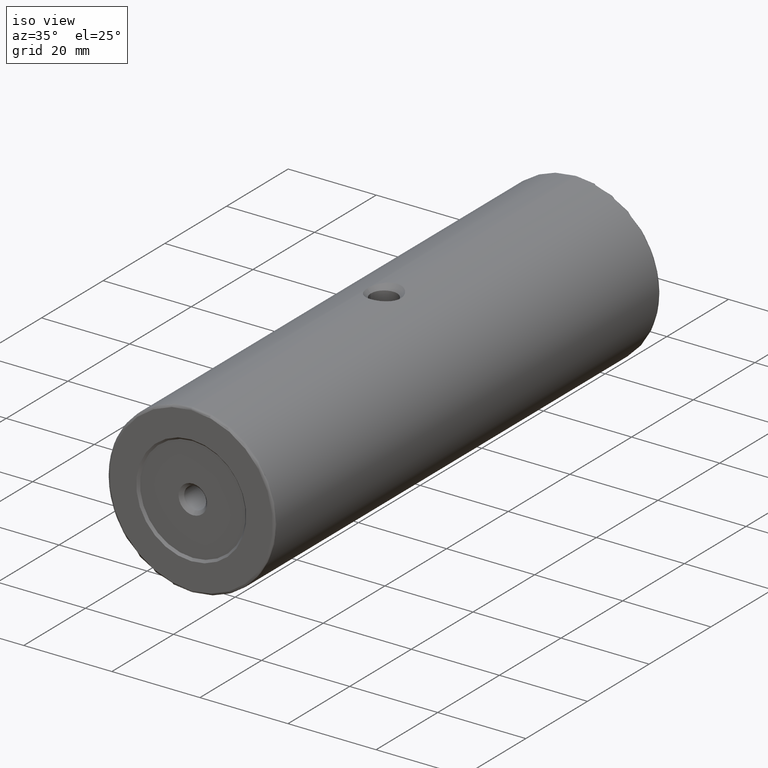
[diagram: clean part render]
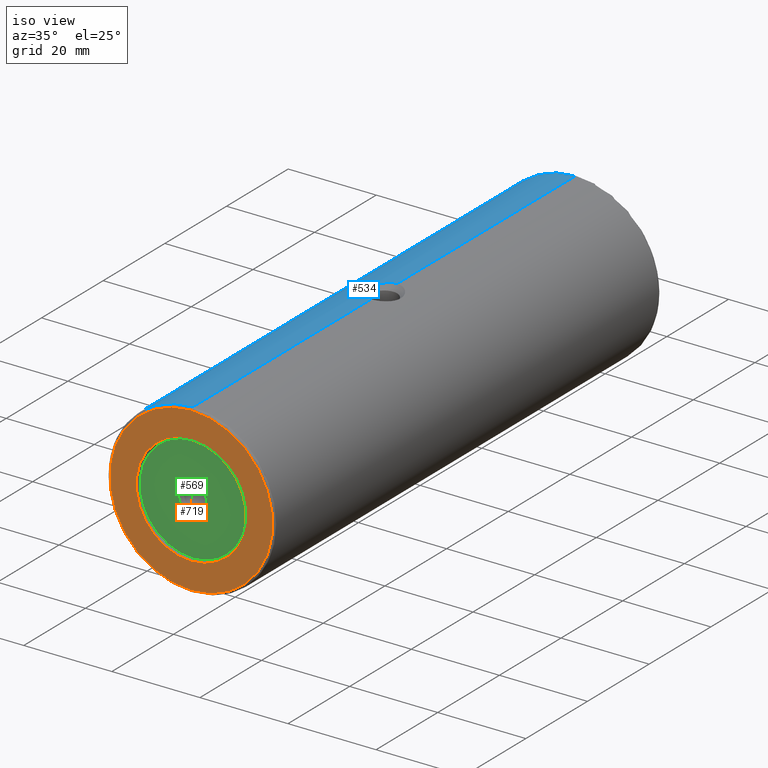
[diagram: same view with three faces highlighted in distinct colors, each labeled with its STEP entity id]
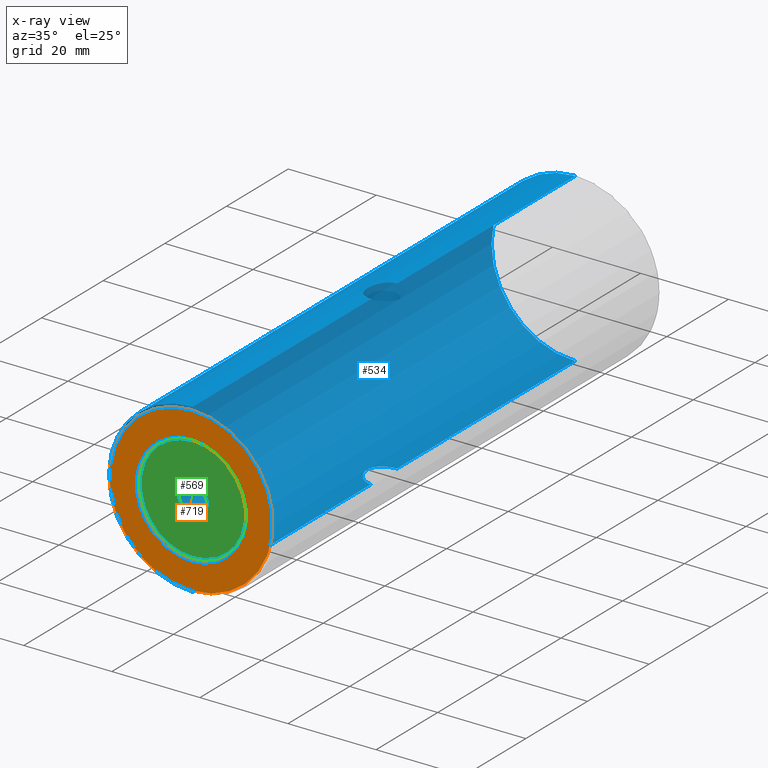
[diagram: x-ray of the same camera — body ghosted, the three highlighted faces saturated]
A machine part, iso view with three faces highlighted in distinct colors.
The next image is the same camera in x-ray (body ghosted, the three faces saturated) — at least one of them is partly hidden behind the body in this view.
Their STEP definitions:

[orange] entity #719 — the highlighted planar face has unit normal (0, 1, 0).
#35 = ORIENTED_EDGE ( 'NONE', *, *, #197, .T. ) ;
#134 = EDGE_LOOP ( 'NONE', ( #585, #35 ) ) ;
#151 = CIRCLE ( 'NONE', #516, 18.50000000000001776 ) ;
#169 = CARTESIAN_POINT ( 'NONE',  ( -85.22679983354142053, -66.76133999167429067, 400.0000000000000000 ) ) ;
#174 = CARTESIAN_POINT ( 'NONE',  ( -85.22679983354142053, -66.76133999167429067, 418.5000000000000568 ) ) ;
#178 = VERTEX_POINT ( 'NONE', #922 ) ;
#187 = AXIS2_PLACEMENT_3D ( 'NONE', #169, #801, #408 ) ;
#194 = FACE_OUTER_BOUND ( 'NONE', #134, .T. ) ;
#197 = EDGE_CURVE ( 'NONE', #935, #988, #271, .T. ) ;
#214 = CARTESIAN_POINT ( 'NONE',  ( -85.22679983354142053, -66.76133999167429067, 400.0000000000000000 ) ) ;
#219 = DIRECTION ( 'NONE',  ( 0.0000000000000000000, 1.000000000000000000, 0.0000000000000000000 ) ) ;
#270 = EDGE_LOOP ( 'NONE', ( #864, #744 ) ) ;
#271 = CIRCLE ( 'NONE', #321, 18.50000000000001776 ) ;
#284 = DIRECTION ( 'NONE',  ( -0.0000000000000000000, 1.000000000000000000, -0.0000000000000000000 ) ) ;
#321 = AXIS2_PLACEMENT_3D ( 'NONE', #214, #536, #695 ) ;
#329 = AXIS2_PLACEMENT_3D ( 'NONE', #836, #219, #542 ) ;
#343 = CARTESIAN_POINT ( 'NONE',  ( -85.22679983354142053, -66.76133999167429067, 400.0000000000000000 ) ) ;
#375 = CIRCLE ( 'NONE', #187, 12.50000000000001066 ) ;
#408 = DIRECTION ( 'NONE',  ( 0.0000000000000000000, 0.0000000000000000000, 1.000000000000000000 ) ) ;
#440 = CARTESIAN_POINT ( 'NONE',  ( -85.22679983354142053, -66.76133999167429067, 412.5000000000000568 ) ) ;
#516 = AXIS2_PLACEMENT_3D ( 'NONE', #343, #623, #783 ) ;
#517 = PLANE ( 'NONE',  #329 ) ;
#536 = DIRECTION ( 'NONE',  ( -0.0000000000000000000, -1.000000000000000000, -0.0000000000000000000 ) ) ;
#542 = DIRECTION ( 'NONE',  ( 0.0000000000000000000, -0.0000000000000000000, 1.000000000000000000 ) ) ;
#551 = CIRCLE ( 'NONE', #868, 12.50000000000001066 ) ;
#585 = ORIENTED_EDGE ( 'NONE', *, *, #931, .T. ) ;
#591 = FACE_BOUND ( 'NONE', #270, .T. ) ;
#603 = VERTEX_POINT ( 'NONE', #440 ) ;
#623 = DIRECTION ( 'NONE',  ( -0.0000000000000000000, -1.000000000000000000, -0.0000000000000000000 ) ) ;
#641 = EDGE_CURVE ( 'NONE', #603, #178, #551, .T. ) ;
#657 = DIRECTION ( 'NONE',  ( 0.0000000000000000000, 0.0000000000000000000, 1.000000000000000000 ) ) ;
#695 = DIRECTION ( 'NONE',  ( 0.0000000000000000000, 0.0000000000000000000, 1.000000000000000000 ) ) ;
#719 = ADVANCED_FACE ( 'NONE', ( #591, #194 ), #517, .F. ) ;
#744 = ORIENTED_EDGE ( 'NONE', *, *, #811, .T. ) ;
#749 = CARTESIAN_POINT ( 'NONE',  ( -85.22679983354142053, -66.76133999167429067, 400.0000000000000000 ) ) ;
#783 = DIRECTION ( 'NONE',  ( 0.0000000000000000000, 0.0000000000000000000, 1.000000000000000000 ) ) ;
#801 = DIRECTION ( 'NONE',  ( -0.0000000000000000000, 1.000000000000000000, -0.0000000000000000000 ) ) ;
#811 = EDGE_CURVE ( 'NONE', #178, #603, #375, .T. ) ;
#836 = CARTESIAN_POINT ( 'NONE',  ( -85.22679983354142053, -66.76133999167429067, 400.0000000000000000 ) ) ;
#864 = ORIENTED_EDGE ( 'NONE', *, *, #641, .T. ) ;
#868 = AXIS2_PLACEMENT_3D ( 'NONE', #749, #284, #657 ) ;
#922 = CARTESIAN_POINT ( 'NONE',  ( -85.22679983354142053, -66.76133999167429067, 387.5000000000000000 ) ) ;
#931 = EDGE_CURVE ( 'NONE', #988, #935, #151, .T. ) ;
#935 = VERTEX_POINT ( 'NONE', #943 ) ;
#943 = CARTESIAN_POINT ( 'NONE',  ( -85.22679983354142053, -66.76133999167429067, 381.5000000000000000 ) ) ;
#988 = VERTEX_POINT ( 'NONE', #174 ) ;

[blue] entity #534 — the highlighted cylindrical surface (partial cylindrical patch) has radius 19 mm, axis along (-0, -1, -0).
#4 = CARTESIAN_POINT ( 'NONE',  ( -85.22679983354142053, -0.06133999167429880772, 419.0000000000000568 ) ) ;
#8 = CARTESIAN_POINT ( 'NONE',  ( -87.21008987037792792, -0.6665384523181927534, 418.8973495991008917 ) ) ;
#13 = B_SPLINE_CURVE_WITH_KNOTS ( 'NONE', 3,
 ( #4, #1010, #453, #80, #937, #762, #8, #376, #619, #316, #853, #784, #458, #70, #305, #225, #624, #220 ),
 .UNSPECIFIED., .F., .F.,
 ( 4, 2, 2, 2, 2, 2, 2, 2, 4 ),
 ( 0.01633425834401431784, 0.01712048413198442517, 0.01790670991995452904, 0.01869293570792463638, 0.01947916149589474372, 0.02026538728386484758, 0.02105161307183495145, 0.02183783885980505879, 0.02262406464777516613 ),
 .UNSPECIFIED. ) ;
#14 = LINE ( 'NONE', #336, #630 ) ;
#16 = CARTESIAN_POINT ( 'NONE',  ( -88.86084895124396610, -2.964938769552044828, 381.3505518109733430 ) ) ;
#22 = DIRECTION ( 'NONE',  ( 0.0000000000000000000, 0.0000000000000000000, -1.000000000000000000 ) ) ;
#27 = CARTESIAN_POINT ( 'NONE',  ( -85.22679983354142053, 58.23866000832570933, 400.0000000000000000 ) ) ;
#32 = CARTESIAN_POINT ( 'NONE',  ( -87.61973751830021229, -7.539048035020909921, 381.1501346175546701 ) ) ;
#38 = CARTESIAN_POINT ( 'NONE',  ( -89.04018469271751712, -4.261339991674283567, 381.3866151408238920 ) ) ;
#43 = CARTESIAN_POINT ( 'NONE',  ( -86.98410511525524669, -7.996885633606630961, 381.0799701750693771 ) ) ;
#59 = CARTESIAN_POINT ( 'NONE',  ( -89.04018469271750291, -4.524194045943173315, 418.6133848591762217 ) ) ;
#65 = CARTESIAN_POINT ( 'NONE',  ( -87.20501299645449933, -7.859601616013272007, 418.8978900510489325 ) ) ;
#69 = CARTESIAN_POINT ( 'NONE',  ( -87.81196888986544025, -7.356176429533654471, 418.8241028157862615 ) ) ;
#70 = CARTESIAN_POINT ( 'NONE',  ( -88.86084895124396610, -2.964938769552044828, 418.6494481890263728 ) ) ;
#71 = CARTESIAN_POINT ( 'NONE',  ( -85.48903342595741606, -0.06133999167429705912, 380.9999999999999432 ) ) ;
#80 = CARTESIAN_POINT ( 'NONE',  ( -86.26440072079715549, -0.2103516366053766184, 418.9733999019272801 ) ) ;
#82 = LINE ( 'NONE', #616, #780 ) ;
#109 = CARTESIAN_POINT ( 'NONE',  ( -85.22679983354142053, 57.73866000832570933, 419.0000000000000568 ) ) ;
#140 = CARTESIAN_POINT ( 'NONE',  ( -86.51381476393198966, -8.223524199725767758, 418.9578280137350816 ) ) ;
#152 = EDGE_CURVE ( 'NONE', #297, #532, #13, .T. ) ;
#166 = CARTESIAN_POINT ( 'NONE',  ( -86.26440072079715549, -0.2103516366053766184, 381.0266000980727767 ) ) ;
#167 = ORIENTED_EDGE ( 'NONE', *, *, #280, .T. ) ;
#172 = LINE ( 'NONE', #803, #735 ) ;
#173 = VERTEX_POINT ( 'NONE', #295 ) ;
#220 = CARTESIAN_POINT ( 'NONE',  ( -89.04018469271751712, -4.261339991674283567, 418.6133848591761648 ) ) ;
#224 = CARTESIAN_POINT ( 'NONE',  ( -85.49146371113677390, -8.461339991674272198, 419.0000000000001705 ) ) ;
#225 = CARTESIAN_POINT ( 'NONE',  ( -89.01727933074084831, -3.733366076984472315, 418.6181191867033817 ) ) ;
#234 = DIRECTION ( 'NONE',  ( -0.0000000000000000000, -1.000000000000000000, -0.0000000000000000000 ) ) ;
#235 = ORIENTED_EDGE ( 'NONE', *, *, #475, .T. ) ;
#247 = CARTESIAN_POINT ( 'NONE',  ( -89.04018469271751712, -3.999029654920558841, 381.3866151408238920 ) ) ;
#256 = CARTESIAN_POINT ( 'NONE',  ( -85.74900820764774778, -0.09101629208817690886, 381.0054266209082812 ) ) ;
#261 = CARTESIAN_POINT ( 'NONE',  ( -88.92822251687863400, -5.302205923223622719, 381.3639714981914040 ) ) ;
#280 = EDGE_CURVE ( 'NONE', #173, #653, #684, .T. ) ;
#281 = CARTESIAN_POINT ( 'NONE',  ( -85.22679983354142053, 57.73866000832570933, 400.0000000000000000 ) ) ;
#290 = CARTESIAN_POINT ( 'NONE',  ( -85.22679983354142053, -8.461339991674268646, 419.0000000000000568 ) ) ;
#295 = CARTESIAN_POINT ( 'NONE',  ( -89.04018469271751712, -4.261339991674283567, 381.3866151408238920 ) ) ;
#297 = VERTEX_POINT ( 'NONE', #851 ) ;
#301 = CARTESIAN_POINT ( 'NONE',  ( -85.22679983354142053, -66.26133999167429067, 400.0000000000000000 ) ) ;
#305 = CARTESIAN_POINT ( 'NONE',  ( -88.92749338337961262, -3.217524007279799481, 418.6361735374826480 ) ) ;
#310 = CARTESIAN_POINT ( 'NONE',  ( -89.04018469271751712, -4.261339991674283567, 418.6133848591761648 ) ) ;
#312 = CARTESIAN_POINT ( 'NONE',  ( -85.22679983354142053, -0.06133999167429880772, 381.0000000000000000 ) ) ;
#316 = CARTESIAN_POINT ( 'NONE',  ( -88.15730954550808462, -1.565196067254975176, 418.7734514940302688 ) ) ;
#317 = DIRECTION ( 'NONE',  ( -0.0000000000000000000, -1.000000000000000000, -0.0000000000000000000 ) ) ;
#319 = EDGE_CURVE ( 'NONE', #907, #748, #403, .T. ) ;
#336 = CARTESIAN_POINT ( 'NONE',  ( -85.22679983354142053, 58.23866000832570933, 381.0000000000000000 ) ) ;
#352 = VERTEX_POINT ( 'NONE', #1015 ) ;
#359 = B_SPLINE_CURVE_WITH_KNOTS ( 'NONE', 3,
 ( #312, #71, #256, #166, #954, #877, #797, #946, #791, #883, #813, #560, #644, #16, #492, #809, #247, #406 ),
 .UNSPECIFIED., .F., .F.,
 ( 4, 2, 2, 2, 2, 2, 2, 2, 4 ),
 ( 0.01633425834401431784, 0.01712048413198442517, 0.01790670991995452904, 0.01869293570792463638, 0.01947916149589474372, 0.02026538728386484758, 0.02105161307183495145, 0.02183783885980505879, 0.02262406464777516613 ),
 .UNSPECIFIED. ) ;
#373 = ORIENTED_EDGE ( 'NONE', *, *, #421, .F. ) ;
#376 = CARTESIAN_POINT ( 'NONE',  ( -87.62330431072487613, -0.9868626275845048257, 418.8494039038823757 ) ) ;
#387 = ORIENTED_EDGE ( 'NONE', *, *, #789, .F. ) ;
#400 = CARTESIAN_POINT ( 'NONE',  ( -89.01782207825233684, -4.784939022142112641, 381.3819915527722060 ) ) ;
#403 = CIRCLE ( 'NONE', #999, 19.00000000000001776 ) ;
#404 = CARTESIAN_POINT ( 'NONE',  ( -85.22679983354142053, -66.26133999167429067, 381.0000000000000000 ) ) ;
#406 = CARTESIAN_POINT ( 'NONE',  ( -89.04018469271751712, -4.261339991674283567, 381.3866151408238920 ) ) ;
#421 = EDGE_CURVE ( 'NONE', #479, #297, #82, .T. ) ;
#424 = VECTOR ( 'NONE', #958, 1000.000000000000000 ) ;
#427 = CARTESIAN_POINT ( 'NONE',  ( -86.26127162816044347, -8.313090059122508535, 381.0264652089310289 ) ) ;
#452 = CARTESIAN_POINT ( 'NONE',  ( -89.01782207825233684, -4.784939022142112641, 418.6180084472278509 ) ) ;
#453 = CARTESIAN_POINT ( 'NONE',  ( -85.74900820764774778, -0.09101629208817690886, 418.9945733790917757 ) ) ;
#454 = AXIS2_PLACEMENT_3D ( 'NONE', #281, #661, #824 ) ;
#458 = CARTESIAN_POINT ( 'NONE',  ( -88.68258810927235913, -2.470732174027440387, 418.6833015855973485 ) ) ;
#461 = EDGE_CURVE ( 'NONE', #674, #173, #359, .T. ) ;
#475 = EDGE_CURVE ( 'NONE', #806, #674, #172, .T. ) ;
#476 = CARTESIAN_POINT ( 'NONE',  ( -85.22679983354142053, 57.73866000832570933, 381.0000000000000000 ) ) ;
#479 = VERTEX_POINT ( 'NONE', #109 ) ;
#492 = CARTESIAN_POINT ( 'NONE',  ( -88.92749338337961262, -3.217524007279799481, 381.3638264625174088 ) ) ;
#496 = CARTESIAN_POINT ( 'NONE',  ( -88.57188684336087192, -6.290580469037319489, 381.2963019886966549 ) ) ;
#500 = B_SPLINE_CURVE_WITH_KNOTS ( 'NONE', 3,
 ( #310, #59, #452, #618, #610, #768, #936, #772, #921, #69, #1001, #65, #932, #140, #1005, #614, #224, #290 ),
 .UNSPECIFIED., .F., .F.,
 ( 4, 2, 2, 2, 2, 2, 2, 2, 4 ),
 ( 0.02262406464777516613, 0.02341192012650424731, 0.02419977560523332849, 0.02498763108396241314, 0.02577548656269149432, 0.02656334204142057551, 0.02735119752014966016, 0.02813905299887874134, 0.02892690847760782252 ),
 .UNSPECIFIED. ) ;
#532 = VERTEX_POINT ( 'NONE', #711 ) ;
#534 = ADVANCED_FACE ( 'NONE', ( #720 ), #892, .T. ) ;
#554 = CARTESIAN_POINT ( 'NONE',  ( -88.86003986455601478, -5.560364975193093251, 381.3503944715658349 ) ) ;
#560 = CARTESIAN_POINT ( 'NONE',  ( -88.57090845425022962, -2.230408319438852871, 381.2961339358312216 ) ) ;
#568 = CARTESIAN_POINT ( 'NONE',  ( -88.30796467933343763, -6.745178320961991325, 381.2510173717518569 ) ) ;
#596 = CARTESIAN_POINT ( 'NONE',  ( -85.22679983354142053, -8.461339991674268646, 381.0000000000000000 ) ) ;
#607 = ORIENTED_EDGE ( 'NONE', *, *, #319, .T. ) ;
#610 = CARTESIAN_POINT ( 'NONE',  ( -88.86003986455601478, -5.560364975193093251, 418.6496055284342788 ) ) ;
#614 = CARTESIAN_POINT ( 'NONE',  ( -85.75119431850812646, -8.431120250548380213, 418.9944772180206769 ) ) ;
#616 = CARTESIAN_POINT ( 'NONE',  ( -85.22679983354142053, 58.23866000832570933, 419.0000000000000568 ) ) ;
#618 = CARTESIAN_POINT ( 'NONE',  ( -88.92822251687863400, -5.302205923223622719, 418.6360285018084824 ) ) ;
#619 = CARTESIAN_POINT ( 'NONE',  ( -87.81247192360183362, -1.166828721202192165, 418.8240449429266050 ) ) ;
#624 = CARTESIAN_POINT ( 'NONE',  ( -89.04018469271751712, -3.999029654920558841, 418.6133848591761648 ) ) ;
#630 = VECTOR ( 'NONE', #875, 1000.000000000000000 ) ;
#633 = DIRECTION ( 'NONE',  ( -0.0000000000000000000, -1.000000000000000000, -0.0000000000000000000 ) ) ;
#637 = CARTESIAN_POINT ( 'NONE',  ( -88.68189959692058721, -6.053472744008438156, 381.3165713769054150 ) ) ;
#644 = CARTESIAN_POINT ( 'NONE',  ( -88.68258810927235913, -2.470732174027440387, 381.3166984144028220 ) ) ;
#653 = VERTEX_POINT ( 'NONE', #596 ) ;
#661 = DIRECTION ( 'NONE',  ( -0.0000000000000000000, -1.000000000000000000, -0.0000000000000000000 ) ) ;
#670 = ORIENTED_EDGE ( 'NONE', *, *, #714, .T. ) ;
#674 = VERTEX_POINT ( 'NONE', #978 ) ;
#684 = B_SPLINE_CURVE_WITH_KNOTS ( 'NONE', 3,
 ( #38, #964, #400, #261, #554, #637, #496, #568, #808, #730, #32, #812, #43, #977, #427, #819, #741, #897 ),
 .UNSPECIFIED., .F., .F.,
 ( 4, 2, 2, 2, 2, 2, 2, 2, 4 ),
 ( 0.02262406464777516613, 0.02341192012650424731, 0.02419977560523332849, 0.02498763108396241314, 0.02577548656269149432, 0.02656334204142057551, 0.02735119752014966016, 0.02813905299887874134, 0.02892690847760782252 ),
 .UNSPECIFIED. ) ;
#711 = CARTESIAN_POINT ( 'NONE',  ( -89.04018469271751712, -4.261339991674283567, 418.6133848591761648 ) ) ;
#714 = EDGE_CURVE ( 'NONE', #479, #806, #767, .T. ) ;
#720 = FACE_OUTER_BOUND ( 'NONE', #1007, .T. ) ;
#730 = CARTESIAN_POINT ( 'NONE',  ( -87.81196888986544025, -7.356176429533654471, 381.1758971842136248 ) ) ;
#735 = VECTOR ( 'NONE', #234, 1000.000000000000000 ) ;
#741 = CARTESIAN_POINT ( 'NONE',  ( -85.49146371113677390, -8.461339991674272198, 381.0000000000000000 ) ) ;
#748 = VERTEX_POINT ( 'NONE', #917 ) ;
#753 = EDGE_CURVE ( 'NONE', #532, #352, #500, .T. ) ;
#756 = ORIENTED_EDGE ( 'NONE', *, *, #753, .F. ) ;
#762 = CARTESIAN_POINT ( 'NONE',  ( -86.98394057735728779, -0.5256534841595331686, 418.9200517613895727 ) ) ;
#765 = AXIS2_PLACEMENT_3D ( 'NONE', #27, #633, #22 ) ;
#767 = CIRCLE ( 'NONE', #454, 19.00000000000001776 ) ;
#768 = CARTESIAN_POINT ( 'NONE',  ( -88.68189959692058721, -6.053472744008438156, 418.6834286230944713 ) ) ;
#772 = CARTESIAN_POINT ( 'NONE',  ( -88.30796467933343763, -6.745178320961991325, 418.7489826282481999 ) ) ;
#780 = VECTOR ( 'NONE', #317, 1000.000000000000000 ) ;
#784 = CARTESIAN_POINT ( 'NONE',  ( -88.57090845425022962, -2.230408319438852871, 418.7038660641689489 ) ) ;
#789 = EDGE_CURVE ( 'NONE', #352, #748, #856, .T. ) ;
#791 = CARTESIAN_POINT ( 'NONE',  ( -87.81247192360183362, -1.166828721202192165, 381.1759550570734518 ) ) ;
#795 = CARTESIAN_POINT ( 'NONE',  ( -85.22679983354142053, 58.23866000832570933, 419.0000000000000568 ) ) ;
#797 = CARTESIAN_POINT ( 'NONE',  ( -87.21008987037792792, -0.6665384523181927534, 381.1026504008992788 ) ) ;
#803 = CARTESIAN_POINT ( 'NONE',  ( -85.22679983354142053, 58.23866000832570933, 381.0000000000000000 ) ) ;
#806 = VERTEX_POINT ( 'NONE', #476 ) ;
#808 = CARTESIAN_POINT ( 'NONE',  ( -88.15440500365676257, -6.961092752758728963, 381.2261065882171351 ) ) ;
#809 = CARTESIAN_POINT ( 'NONE',  ( -89.01727933074084831, -3.733366076984472315, 381.3818808132967320 ) ) ;
#812 = CARTESIAN_POINT ( 'NONE',  ( -87.20501299645449933, -7.859601616013272007, 381.1021099489511244 ) ) ;
#813 = CARTESIAN_POINT ( 'NONE',  ( -88.30889371447072733, -1.779107847670829301, 381.2511769563365078 ) ) ;
#819 = CARTESIAN_POINT ( 'NONE',  ( -85.75119431850812646, -8.431120250548380213, 381.0055227819794936 ) ) ;
#824 = DIRECTION ( 'NONE',  ( 0.0000000000000000000, 0.0000000000000000000, 1.000000000000000000 ) ) ;
#842 = EDGE_CURVE ( 'NONE', #653, #907, #14, .T. ) ;
#851 = CARTESIAN_POINT ( 'NONE',  ( -85.22679983354142053, -0.06133999167429880772, 419.0000000000000568 ) ) ;
#853 = CARTESIAN_POINT ( 'NONE',  ( -88.30889371447072733, -1.779107847670829301, 418.7488230436633785 ) ) ;
#856 = LINE ( 'NONE', #795, #424 ) ;
#863 = DIRECTION ( 'NONE',  ( 0.0000000000000000000, 0.0000000000000000000, 1.000000000000000000 ) ) ;
#872 = ORIENTED_EDGE ( 'NONE', *, *, #152, .F. ) ;
#875 = DIRECTION ( 'NONE',  ( -0.0000000000000000000, -1.000000000000000000, -0.0000000000000000000 ) ) ;
#877 = CARTESIAN_POINT ( 'NONE',  ( -86.98394057735728779, -0.5256534841595331686, 381.0799482386107115 ) ) ;
#883 = CARTESIAN_POINT ( 'NONE',  ( -88.15730954550808462, -1.565196067254975176, 381.2265485059697880 ) ) ;
#892 = CYLINDRICAL_SURFACE ( 'NONE', #765, 19.00000000000001776 ) ;
#897 = CARTESIAN_POINT ( 'NONE',  ( -85.22679983354142053, -8.461339991674268646, 381.0000000000000000 ) ) ;
#907 = VERTEX_POINT ( 'NONE', #404 ) ;
#917 = CARTESIAN_POINT ( 'NONE',  ( -85.22679983354142053, -66.26133999167429067, 419.0000000000000568 ) ) ;
#921 = CARTESIAN_POINT ( 'NONE',  ( -88.15440500365676257, -6.961092752758728963, 418.7738934117829217 ) ) ;
#929 = DIRECTION ( 'NONE',  ( 0.0000000000000000000, 1.000000000000000000, 0.0000000000000000000 ) ) ;
#932 = CARTESIAN_POINT ( 'NONE',  ( -86.98410511525524669, -7.996885633606630961, 418.9200298249307366 ) ) ;
#936 = CARTESIAN_POINT ( 'NONE',  ( -88.57188684336087192, -6.290580469037319489, 418.7036980113034588 ) ) ;
#937 = CARTESIAN_POINT ( 'NONE',  ( -86.51258600344370109, -0.2986253842693811777, 418.9579180337008211 ) ) ;
#939 = ORIENTED_EDGE ( 'NONE', *, *, #461, .T. ) ;
#946 = CARTESIAN_POINT ( 'NONE',  ( -87.62330431072487613, -0.9868626275845048257, 381.1505960961178516 ) ) ;
#954 = CARTESIAN_POINT ( 'NONE',  ( -86.51258600344370109, -0.2986253842693811777, 381.0420819662991789 ) ) ;
#958 = DIRECTION ( 'NONE',  ( -0.0000000000000000000, -1.000000000000000000, -0.0000000000000000000 ) ) ;
#964 = CARTESIAN_POINT ( 'NONE',  ( -89.04018469271750291, -4.524194045943173315, 381.3866151408239489 ) ) ;
#977 = CARTESIAN_POINT ( 'NONE',  ( -86.51381476393198966, -8.223524199725767758, 381.0421719862650889 ) ) ;
#978 = CARTESIAN_POINT ( 'NONE',  ( -85.22679983354142053, -0.06133999167429880772, 381.0000000000000000 ) ) ;
#979 = ORIENTED_EDGE ( 'NONE', *, *, #842, .T. ) ;
#999 = AXIS2_PLACEMENT_3D ( 'NONE', #301, #929, #863 ) ;
#1001 = CARTESIAN_POINT ( 'NONE',  ( -87.61973751830021229, -7.539048035020909921, 418.8498653824453868 ) ) ;
#1005 = CARTESIAN_POINT ( 'NONE',  ( -86.26127162816044347, -8.313090059122508535, 418.9735347910690848 ) ) ;
#1007 = EDGE_LOOP ( 'NONE', ( #373, #670, #235, #939, #167, #979, #607, #387, #756, #872 ) ) ;
#1010 = CARTESIAN_POINT ( 'NONE',  ( -85.48903342595741606, -0.06133999167429705912, 419.0000000000001705 ) ) ;
#1015 = CARTESIAN_POINT ( 'NONE',  ( -85.22679983354142053, -8.461339991674268646, 419.0000000000000568 ) ) ;

[green] entity #569 — the highlighted planar face has unit normal (0, -1, 0).
#55 = DIRECTION ( 'NONE',  ( 0.0000000000000000000, -1.000000000000000000, 0.0000000000000000000 ) ) ;
#79 = CIRCLE ( 'NONE', #463, 12.00000000000001066 ) ;
#105 = EDGE_CURVE ( 'NONE', #884, #110, #342, .T. ) ;
#107 = CARTESIAN_POINT ( 'NONE',  ( -85.22679983354142053, -66.26133999167429067, 412.0000000000000568 ) ) ;
#110 = VERTEX_POINT ( 'NONE', #130 ) ;
#130 = CARTESIAN_POINT ( 'NONE',  ( -85.22679983354142053, -66.26133999167429067, 388.0000000000000000 ) ) ;
#137 = CARTESIAN_POINT ( 'NONE',  ( -85.22679983354142053, -66.26133999167429067, 400.0000000000000000 ) ) ;
#254 = CARTESIAN_POINT ( 'NONE',  ( -85.22679983354142053, -66.26133999167429067, 400.0000000000000000 ) ) ;
#266 = ORIENTED_EDGE ( 'NONE', *, *, #874, .F. ) ;
#272 = FACE_OUTER_BOUND ( 'NONE', #538, .T. ) ;
#274 = VERTEX_POINT ( 'NONE', #953 ) ;
#306 = DIRECTION ( 'NONE',  ( 0.0000000000000000000, 0.0000000000000000000, -1.000000000000000000 ) ) ;
#325 = CARTESIAN_POINT ( 'NONE',  ( -85.22679983354142053, -66.26133999167429067, 396.7500000000000568 ) ) ;
#342 = CIRCLE ( 'NONE', #466, 12.00000000000001066 ) ;
#349 = ORIENTED_EDGE ( 'NONE', *, *, #604, .T. ) ;
#386 = DIRECTION ( 'NONE',  ( -0.0000000000000000000, 1.000000000000000000, -0.0000000000000000000 ) ) ;
#413 = EDGE_CURVE ( 'NONE', #499, #274, #970, .T. ) ;
#444 = CARTESIAN_POINT ( 'NONE',  ( -85.22679983354142053, -66.26133999167429067, 400.0000000000000000 ) ) ;
#463 = AXIS2_PLACEMENT_3D ( 'NONE', #254, #650, #894 ) ;
#466 = AXIS2_PLACEMENT_3D ( 'NONE', #597, #909, #837 ) ;
#499 = VERTEX_POINT ( 'NONE', #325 ) ;
#503 = DIRECTION ( 'NONE',  ( -0.0000000000000000000, 1.000000000000000000, -0.0000000000000000000 ) ) ;
#508 = CIRCLE ( 'NONE', #1004, 3.249999999999975131 ) ;
#512 = DIRECTION ( 'NONE',  ( 0.0000000000000000000, 0.0000000000000000000, 1.000000000000000000 ) ) ;
#538 = EDGE_LOOP ( 'NONE', ( #552, #266 ) ) ;
#552 = ORIENTED_EDGE ( 'NONE', *, *, #105, .F. ) ;
#569 = ADVANCED_FACE ( 'NONE', ( #638, #272 ), #905, .T. ) ;
#597 = CARTESIAN_POINT ( 'NONE',  ( -85.22679983354142053, -66.26133999167429067, 400.0000000000000000 ) ) ;
#604 = EDGE_CURVE ( 'NONE', #274, #499, #508, .T. ) ;
#638 = FACE_BOUND ( 'NONE', #728, .T. ) ;
#650 = DIRECTION ( 'NONE',  ( -0.0000000000000000000, 1.000000000000000000, -0.0000000000000000000 ) ) ;
#728 = EDGE_LOOP ( 'NONE', ( #852, #349 ) ) ;
#758 = DIRECTION ( 'NONE',  ( 0.0000000000000000000, 0.0000000000000000000, -1.000000000000000000 ) ) ;
#837 = DIRECTION ( 'NONE',  ( 0.0000000000000000000, 0.0000000000000000000, -1.000000000000000000 ) ) ;
#852 = ORIENTED_EDGE ( 'NONE', *, *, #413, .T. ) ;
#874 = EDGE_CURVE ( 'NONE', #110, #884, #79, .T. ) ;
#884 = VERTEX_POINT ( 'NONE', #107 ) ;
#888 = AXIS2_PLACEMENT_3D ( 'NONE', #137, #386, #306 ) ;
#894 = DIRECTION ( 'NONE',  ( 0.0000000000000000000, 0.0000000000000000000, -1.000000000000000000 ) ) ;
#905 = PLANE ( 'NONE',  #1014 ) ;
#909 = DIRECTION ( 'NONE',  ( -0.0000000000000000000, 1.000000000000000000, -0.0000000000000000000 ) ) ;
#953 = CARTESIAN_POINT ( 'NONE',  ( -85.22679983354142053, -66.26133999167429067, 403.2500000000000000 ) ) ;
#970 = CIRCLE ( 'NONE', #888, 3.249999999999975131 ) ;
#995 = CARTESIAN_POINT ( 'NONE',  ( -85.22679983354142053, -66.26133999167429067, 400.0000000000000000 ) ) ;
#1004 = AXIS2_PLACEMENT_3D ( 'NONE', #444, #503, #758 ) ;
#1014 = AXIS2_PLACEMENT_3D ( 'NONE', #995, #55, #512 ) ;